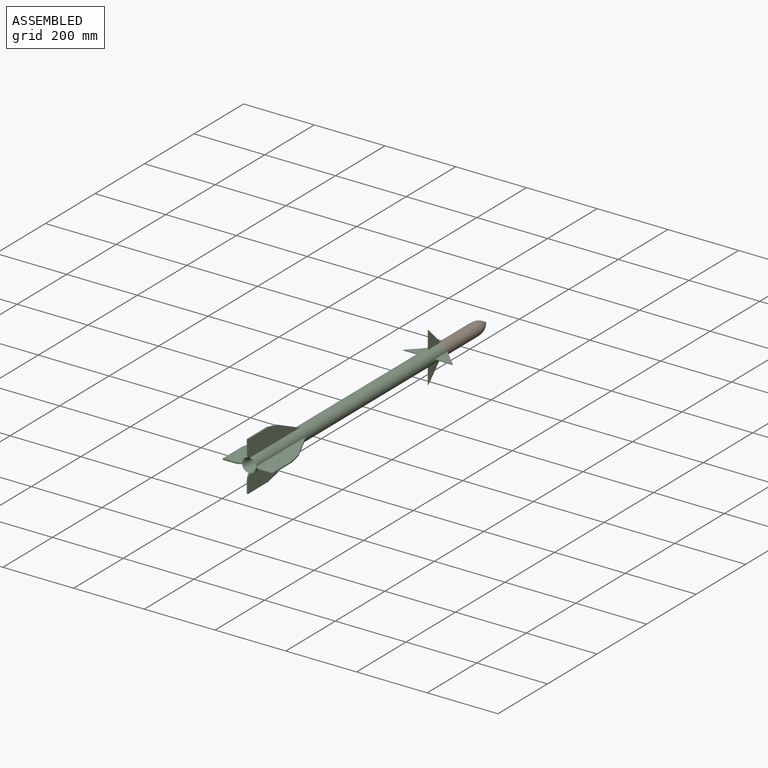
[diagram: assembled view]
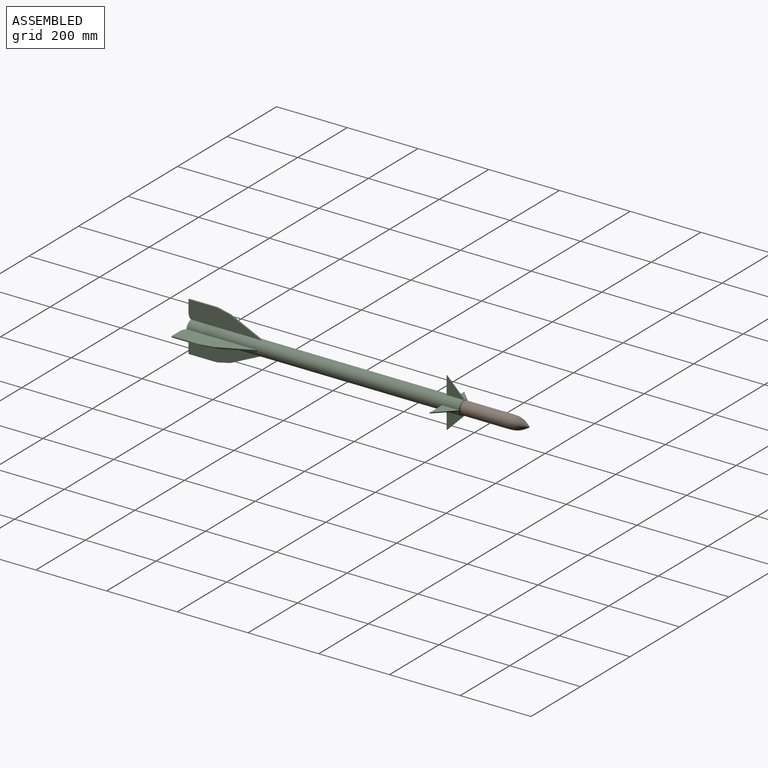
[diagram: assembled view, second angle]
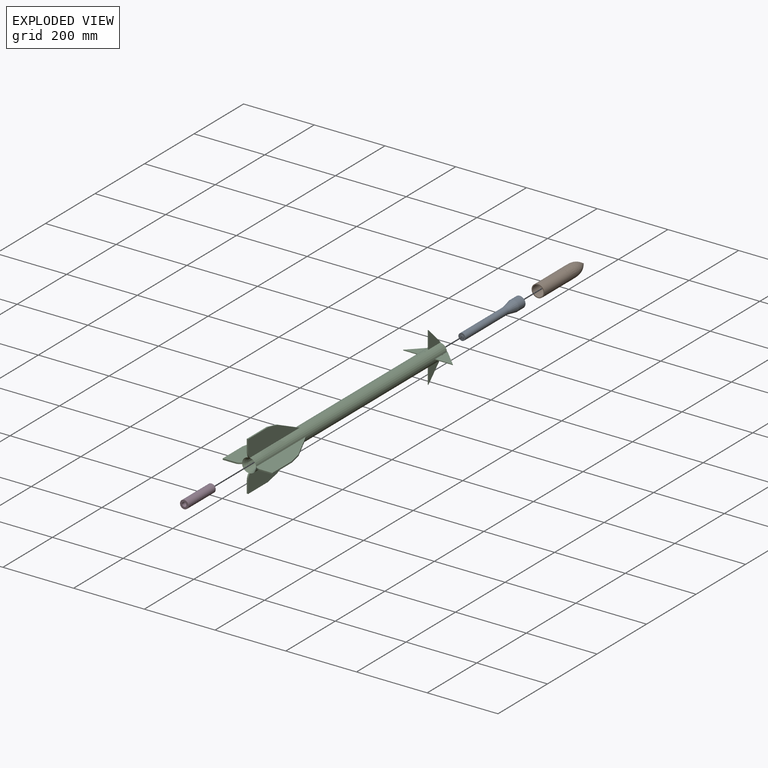
[diagram: exploded view]
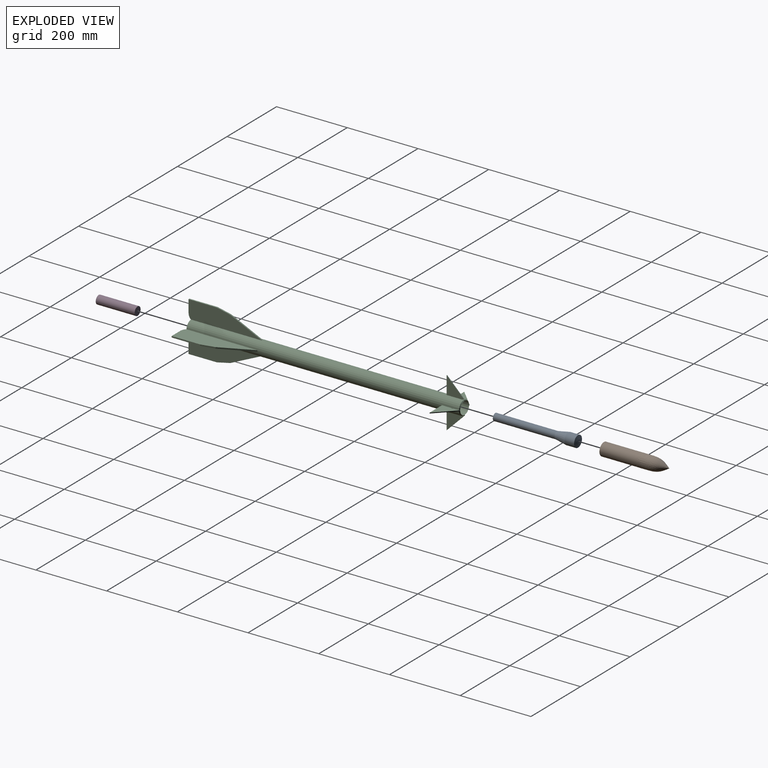
[diagram: exploded view, second angle]
ASSEMBLY  parts=4 mates=3
PART A: 8 faces, bbox 32x238x32 mm
  f0: plane 10x10mm, normal (0,1,0), area 78.5mm2, adj f1
  f1: cone r=16mm half-angle=79.4deg, axis (0,-1,0), area 738.2mm2, adj f0,f2
  f2: cylinder r=16mm len=32mm, axis (0,-1,0), area 2714.3mm2, adj f1,f3
  f3: cone r=10mm half-angle=10.6deg, axis (0,1,0), area 2673.2mm2, adj f2,f4
  f4: cylinder r=10mm len=174.81mm, axis (0,-1,0), area 10983.7mm2, adj f3,f5
  f5: plane 20x20mm, normal (0,-1,0), area 235.6mm2, adj f4,f6
  f6: cylinder r=5mm len=10mm, axis (0,-1,0), area 62.8mm2, adj f5,f7
  f7: plane 10x10mm, normal (0,-1,0), area 78.5mm2, adj f6
PART B: 6 faces, bbox 36.2x185x36.2 mm
  f0: cylinder r=18mm len=100mm, axis (0,-1,0), area 11309.7mm2, adj f1,f4
  f1: plane 36x36mm, normal (0,-1,0), area 263.1mm2, adj f0,f2
  f2: cylinder r=15.5mm len=97.5mm, axis (0,-1,0), area 9495.5mm2, adj f1,f3
  f3: plane 31x31mm, normal (0,-1,0), area 754.8mm2, adj f2
  f4: plane 36.17x36.17mm, normal (0,-1,0), area 9.7mm2, adj f0,f5
  f5: revolved ~85x36.2mm, area 7973.1mm2, adj f4
PART C: 87 faces, bbox 140x779.4x140 mm
  f0: plane 2.03x2mm, normal (0,1,0), area 4mm2, adj f3,f38,f44,f46
  f1: plane 2.03x2mm, normal (0,1,0), area 4mm2, adj f38,f49,f50,f51
  f2: plane 2.03x2mm, normal (0,1,0), area 4mm2, adj f38,f60,f61,f65
  f3: plane 5.14x2mm, normal (0,0,1), area 10.3mm2, adj f0,f44,f46,f82
  f4: plane 5.14x2mm, normal (-1,0,0), area 10.3mm2, adj f49,f51,f76,f78
  f5: plane 50x2mm, normal (-1,0,0), area 100mm2, adj f48,f49,f51,f52,f75
  f6: plane 2x0.01mm, normal (0,0,-1), area 0mm2, adj f39,f55,f56,f70
  f7: plane 5.14x2mm, normal (0,0,-1), area 10.3mm2, adj f55,f56,f69,f72
  f8: plane 5.14x2mm, normal (1,0,0), area 10.3mm2, adj f60,f61,f66,f68
  f9: cylinder r=20mm len=770.77mm, axis (0,-1,0), area 93001.1mm2, adj f17,f18,f19,f20,f21,f22,f23,f24
  f10: plane 35.22x3.82mm, normal (0,-1,0), area 134.4mm2, adj f19,f20,f30,f33
  f11: plane 35.22x3.82mm, normal (0,-1,0), area 134.4mm2, adj f17,f18,f28,f33
  f12: plane 35.22x3.82mm, normal (0,-1,0), area 134.4mm2, adj f23,f24,f26,f33
  f13: cone r=12mm half-angle=5.3deg, axis (0,-1,0), area 2651.9mm2, adj f14,f33
  f14: cylinder r=12mm len=140mm, axis (0,-1,0), area 10555.8mm2, adj f13,f15
  f15: plane 24x24mm, normal (0,-1,0), area 452.4mm2, adj f14
  f16: plane 35.22x3.82mm, normal (0,-1,0), area 134.4mm2, adj f21,f22,f32,f33
  f17: plane 207.42x50.09mm, normal (0,0,1), area 7584.9mm2, adj f9,f11,f27,f28,f33,f35
  f18: plane 207.42x50.09mm, normal (0,0,-1), area 7584.9mm2, adj f9,f11,f27,f28,f33,f35
  f19: plane 207.42x50.09mm, normal (-1,0,0), area 7584.9mm2, adj f9,f10,f29,f30,f33,f34
  f20: plane 207.42x50.09mm, normal (1,0,0), area 7584.9mm2, adj f9,f10,f29,f30,f33,f34
  f21: plane 207.42x50.09mm, normal (0,0,-1), area 7584.9mm2, adj f9,f16,f31,f32,f33,f37
  f22: plane 207.42x50.09mm, normal (0,0,1), area 7584.9mm2, adj f9,f16,f31,f32,f33,f37
  f23: plane 207.42x50.09mm, normal (-1,0,0), area 7584.9mm2, adj f9,f12,f25,f26,f33,f36
  f24: plane 207.42x50.09mm, normal (1,0,0), area 7584.9mm2, adj f9,f12,f25,f26,f33,f36
  f25: plane 89.3x41.64mm, normal (0,0.42,-0.91), area 375.9mm2, adj f9,f23,f24,f36
  f26: plane 80x3.82mm, normal (0,0,-1), area 305.7mm2, adj f12,f23,f24,f36
  f27: plane 89.3x41.64mm, normal (0.91,0.42,0), area 375.9mm2, adj f9,f17,f18,f35
  f28: plane 80x3.82mm, normal (1,0,0), area 305.7mm2, adj f11,f17,f18,f35
  f29: plane 89.3x41.64mm, normal (0,0.42,0.91), area 375.9mm2, adj f9,f19,f20,f34
  f30: plane 80x3.82mm, normal (0,0,1), area 305.7mm2, adj f10,f19,f20,f34
  f31: plane 89.3x41.64mm, normal (-0.91,0.42,0), area 375.9mm2, adj f9,f21,f22,f37
  f32: plane 80x3.82mm, normal (-1,0,0), area 305.7mm2, adj f16,f21,f22,f37
  f33: torus R=34.83mm, axis (0,-1,0), area 1613.9mm2, adj f9,f10,f11,f12,f13,f16,f17,f18
  f34: plane 38.13x8.45mm, normal (0,0.22,0.98), area 149.2mm2, adj f19,f20,f29,f30
  f35: plane 38.13x8.45mm, normal (0.98,0.22,0), area 149.2mm2, adj f17,f18,f27,f28
  f36: plane 38.13x8.45mm, normal (0,0.22,-0.98), area 149.2mm2, adj f23,f24,f25,f26
  f37: plane 38.13x8.45mm, normal (-0.98,0.22,0), area 149.2mm2, adj f21,f22,f31,f32
  f38: cylinder r=18mm len=100mm, axis (0,-1,0), area 11309.7mm2, adj f0,f1,f2,f39,f42,f83,f84,f85
  f39: plane 2.03x2mm, normal (0,1,0), area 4mm2, adj f6,f38,f55,f56
  f40: plane 24x24mm, normal (0,1,0), area 452.4mm2, adj f41
  f41: cylinder r=12mm len=150mm, axis (0,-1,0), area 11309.7mm2, adj f40,f42
  f42: plane 36x36mm, normal (0,1,0), area 565.5mm2, adj f38,f41
  f43: plane 1x0.03mm, normal (0,-1,0), area 0mm2, adj f9,f45,f46
  f44: plane 100.01x52.03mm, normal (-1,0,0), area 1249.5mm2, adj f0,f3,f9,f45,f47,f79,f80,f81
  f45: plane 50x2mm, normal (0,0,1), area 100mm2, adj f43,f44,f46,f47,f79
  f46: plane 100.01x52.03mm, normal (1,0,0), area 1249.5mm2, adj f0,f3,f9,f43,f45,f79,f80,f81
  f47: plane 1x0.03mm, normal (0,-1,0), area 0mm2, adj f9,f44,f45
  f48: plane 1x0.03mm, normal (0,-1,0), area 0mm2, adj f5,f9,f49
  f49: plane 100.01x52.03mm, normal (0,0,-1), area 1249.4mm2, adj f1,f4,f5,f9,f48,f74,f75,f76
  f50: plane 2x0mm, normal (-1,0,0), area 0mm2, adj f1,f74
  f51: plane 100.01x52.03mm, normal (0,0,1), area 1249.4mm2, adj f1,f4,f5,f9,f52,f74,f75,f76
  f52: plane 1x0.03mm, normal (0,-1,0), area 0mm2, adj f5,f9,f51
  f53: plane 1x0.03mm, normal (0,-1,0), area 0mm2, adj f9,f54,f56
  f54: plane 49.99x2mm, normal (0,0,-1), area 100mm2, adj f53,f55,f56,f57,f71
  f55: plane 100.01x52.03mm, normal (-1,0,0), area 1249.9mm2, adj f6,f7,f9,f39,f54,f57,f69,f70
  f56: plane 100.01x52.03mm, normal (1,0,0), area 1249.9mm2, adj f6,f7,f9,f39,f53,f54,f69,f70
  f57: plane 1x0.03mm, normal (0,-1,0), area 0mm2, adj f9,f54,f55
  f58: plane 1x0.03mm, normal (0,-1,0), area 0mm2, adj f9,f59,f61
  f59: plane 50x2mm, normal (1,0,0), area 100mm2, adj f58,f60,f61,f62,f63
  f60: plane 100.01x52.03mm, normal (0,0,-1), area 1249.9mm2, adj f2,f8,f9,f59,f62,f63,f64,f66
  f61: plane 100.01x52.03mm, normal (0,0,1), area 1249.9mm2, adj f2,f8,f9,f58,f59,f63,f64,f66
  f62: plane 1x0.03mm, normal (0,-1,0), area 0mm2, adj f9,f59,f60
  f63: plane 50x2mm, normal (0,-1,0), area 100mm2, adj f59,f60,f61,f64
  f64: plane 50x50mm, normal (0.71,0.71,0), area 141.4mm2, adj f60,f61,f63,f65
  f65: plane 2x0mm, normal (-1,0,0), area 0mm2, adj f2,f64
  f66: plane 2x0.9mm, normal (0,-1,0), area 1.8mm2, adj f8,f60,f61,f67
  f67: plane 5.14x2mm, normal (-1,0,0), area 10.3mm2, adj f60,f61,f66,f68
  f68: plane 2x0.9mm, normal (0,1,0), area 1.8mm2, adj f8,f60,f61,f67
  f69: plane 2x0.9mm, normal (0,-1,0), area 1.8mm2, adj f7,f55,f56,f73
  f70: plane 50x50mm, normal (0,0.71,-0.71), area 141.4mm2, adj f6,f55,f56,f71
  f71: plane 50x2mm, normal (0,-1,0), area 100mm2, adj f54,f55,f56,f70
  f72: plane 2x0.9mm, normal (0,1,0), area 1.8mm2, adj f7,f55,f56,f73
  f73: plane 5.14x2mm, normal (0,0,1), area 10.3mm2, adj f55,f56,f69,f72
  f74: plane 50x50mm, normal (-0.71,0.71,0), area 141.4mm2, adj f49,f50,f51,f75
  f75: plane 50x2mm, normal (0,-1,0), area 100mm2, adj f5,f49,f51,f74
  f76: plane 2x1mm, normal (0,1,0), area 2mm2, adj f4,f49,f51,f77
  f77: plane 5.14x2mm, normal (1,0,0), area 10.3mm2, adj f49,f51,f76,f78
  f78: plane 2x1mm, normal (0,-1,0), area 2mm2, adj f4,f49,f51,f77
  f79: plane 50x2mm, normal (0,-1,0), area 100mm2, adj f44,f45,f46,f80
  f80: plane 48.9x48.9mm, normal (0,0.71,0.71), area 138.3mm2, adj f44,f46,f79,f81
  f81: plane 4.04x2mm, normal (0,0,-1), area 8.1mm2, adj f44,f46,f80,f82
  f82: plane 2x1.1mm, normal (0,1,0), area 2.2mm2, adj f3,f44,f46,f81
  f83: cone r=20mm half-angle=45deg, axis (0,-1,0), area 78.7mm2, adj f9,f38,f46,f61
  f84: cone r=20mm half-angle=45deg, axis (0,-1,0), area 78.7mm2, adj f9,f38,f44,f51
  f85: cone r=20mm half-angle=45deg, axis (0,-1,0), area 78.7mm2, adj f9,f38,f56,f60
  f86: cone r=20mm half-angle=45deg, axis (0,-1,0), area 78.7mm2, adj f9,f38,f49,f55
PART D: 5 faces, bbox 24x110x24 mm
  f0: plane 24x24mm, normal (0,-1,0), area 339.3mm2, adj f1,f4
  f1: cylinder r=6mm len=107mm, axis (0,-1,0), area 4033.8mm2, adj f0,f2
  f2: plane 12x12mm, normal (0,-1,0), area 113.1mm2, adj f1
  f3: plane 24x24mm, normal (0,1,0), area 452.4mm2, adj f4
  f4: cylinder r=12mm len=110mm, axis (0,-1,0), area 8293.8mm2, adj f0,f3
PLACE A t=(51.36,-21.81,-82.82)mm
PLACE B t=(51.36,-21.81,-82.82)mm
PLACE C t=(51.36,-21.81,-82.82)mm
PLACE D t=(51.36,118.19,-82.82)mm
MATE fastened B.f0 <-> C.f38  axis (0,-1,0) through (51.36,408.19,-82.82)mm
MATE fastened D.f1 <-> C.f9  axis (0,1,0) through (51.36,-181.81,-82.82)mm
MATE fastened A.f1 <-> C.f9  axis (0,-1,0) through (51.36,158.19,-82.82)mm
